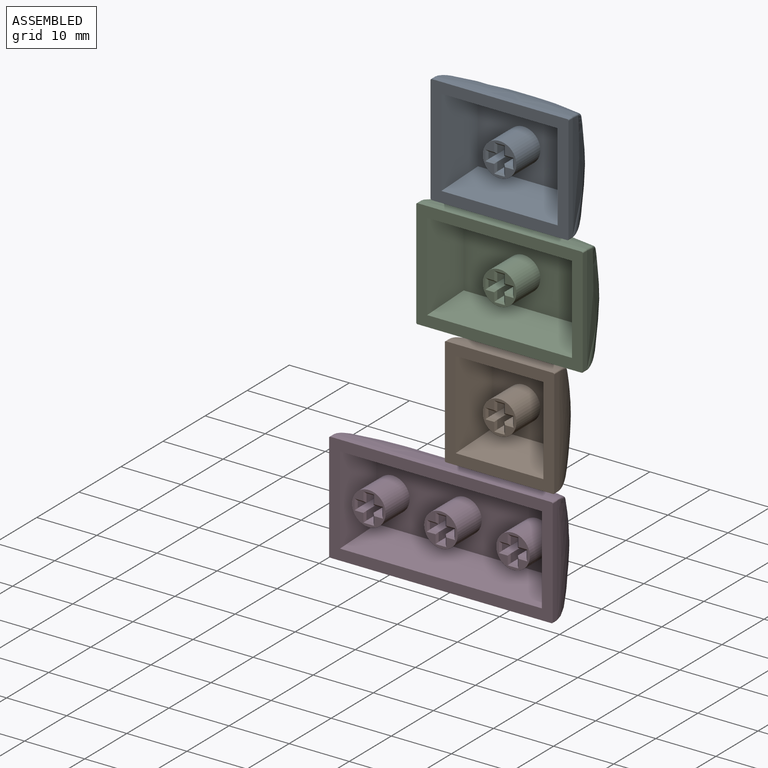
[diagram: assembled view]
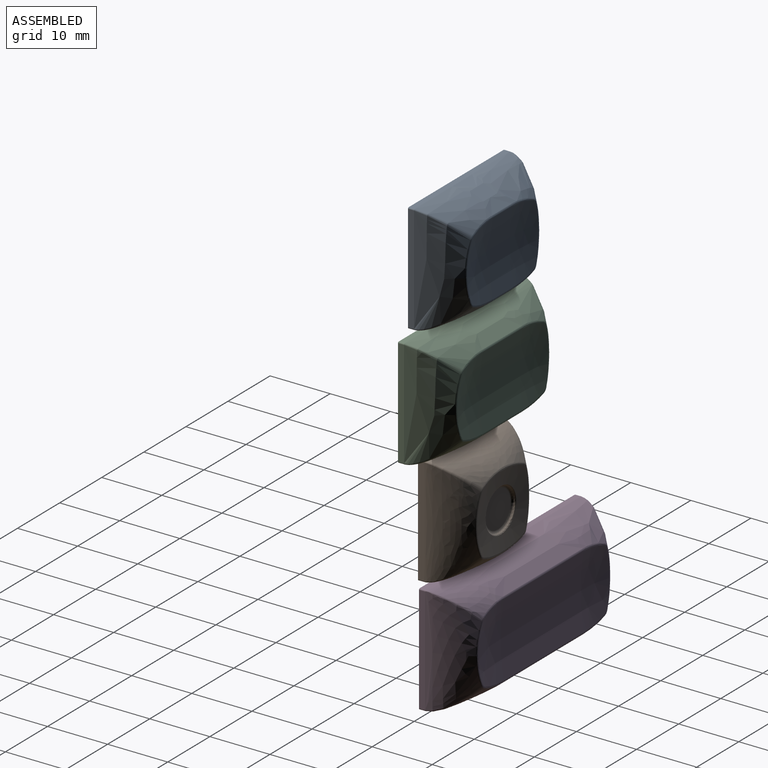
[diagram: assembled view, second angle]
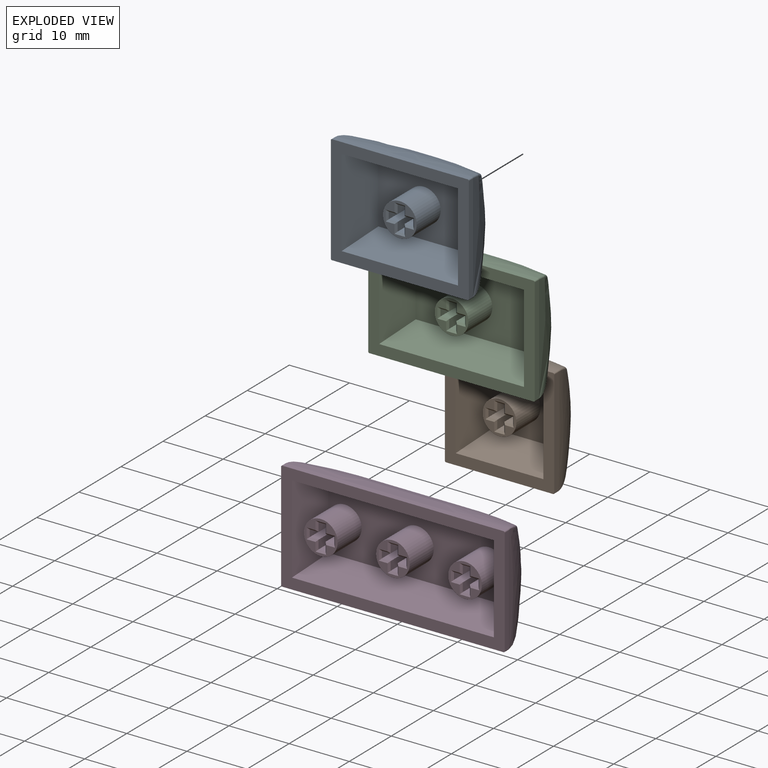
[diagram: exploded view]
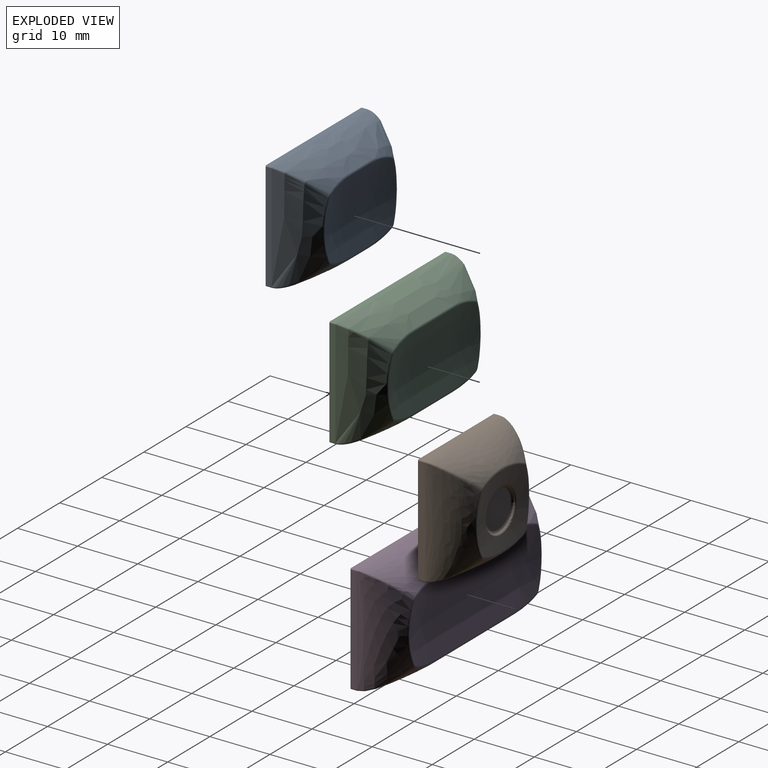
[diagram: exploded view, second angle]
ASSEMBLY  parts=4 mates=3
PART A: 54 faces, bbox 23x8.2x18.2 mm
  f0: plane 1.77x0.3mm, normal (0,-0.71,0.71), area 0.6mm2, adj f8,f11,f15,f18
  f1: plane 1.77x0.3mm, normal (0,-0.71,-0.71), area 0.6mm2, adj f2,f8,f17,f18
  f2: plane 1.77x0.3mm, normal (-0.71,-0.71,0), area 0.6mm2, adj f1,f3,f18,f23
  f3: plane 1.77x0.3mm, normal (0,-0.71,-0.71), area 0.6mm2, adj f2,f4,f18,f22
  f4: plane 1.77x0.3mm, normal (0.71,-0.71,0), area 0.6mm2, adj f3,f5,f18,f21
  f5: plane 1.77x0.3mm, normal (0,-0.71,-0.71), area 0.6mm2, adj f4,f6,f18,f20
  f6: plane 1.77x0.3mm, normal (0.71,-0.71,0), area 0.6mm2, adj f5,f7,f18,f25
  f7: plane 1.77x0.3mm, normal (0,-0.71,0.71), area 0.6mm2, adj f6,f9,f18,f24
  f8: plane 1.77x0.3mm, normal (-0.71,-0.71,0), area 0.6mm2, adj f0,f1,f16,f18
  f9: plane 1.77x0.3mm, normal (0.71,-0.71,0), area 0.6mm2, adj f7,f10,f12,f18
  f10: plane 1.77x0.3mm, normal (0,-0.71,0.71), area 0.6mm2, adj f9,f11,f13,f18
  f11: plane 1.77x0.3mm, normal (-0.71,-0.71,0), area 0.6mm2, adj f0,f10,f14,f18
  f12: plane 4.4x1.47mm, normal (1,0,0), area 6.4mm2, adj f9,f13,f19,f24
  f13: plane 4.4x1.17mm, normal (0,0,1), area 5.1mm2, adj f10,f12,f14,f19
  f14: plane 4.4x1.47mm, normal (-1,0,0), area 6.4mm2, adj f11,f13,f15,f19
  f15: plane 4.4x1.47mm, normal (0,0,1), area 6.4mm2, adj f0,f14,f16,f19
  f16: plane 4.4x1.17mm, normal (-1,0,0), area 5.1mm2, adj f8,f15,f17,f19
  f17: plane 4.4x1.47mm, normal (0,0,-1), area 6.4mm2, adj f1,f16,f19,f23
  f18: plane 5.6x5.6mm, normal (0,-1,0), area 11.1mm2, adj f0,f1,f2,f3,f4,f5,f6,f7
  f19: plane 4.1x4.1mm, normal (0,-1,0), area 8.2mm2, adj f12,f13,f14,f15,f16,f17,f20,f21
  f20: plane 4.4x1.47mm, normal (0,0,-1), area 6.4mm2, adj f5,f19,f21,f25
  f21: plane 4.4x1.47mm, normal (1,0,0), area 6.4mm2, adj f4,f19,f20,f22
  f22: plane 4.4x1.17mm, normal (0,0,-1), area 5.1mm2, adj f3,f19,f21,f23
  f23: plane 4.4x1.47mm, normal (-1,0,0), area 6.4mm2, adj f2,f17,f19,f22
  f24: plane 4.4x1.47mm, normal (0,0,1), area 6.4mm2, adj f7,f12,f19,f25
  f25: plane 4.4x1.17mm, normal (1,0,0), area 5.1mm2, adj f6,f19,f20,f24
  f26: cylinder r=2.8mm len=5.7mm, axis (0,1,0), area 100.3mm2, adj f18,f48
  f27: sphere r=38.75mm, area 64.7mm2, adj f28,f30,f38
  f28: bspline ~11.54x6.54mm, area 5.8mm2, adj f27,f29,f30,f31,f39
  f29: bspline ~18x9.1mm, area 173.3mm2, adj f28,f31,f33,f34,f40,f41
  f30: bspline ~5.33x1.56mm, area 2mm2, adj f27,f28,f31,f37
  f31: bspline ~9.1x6.85mm, area 60.8mm2, adj f28,f29,f30,f35,f36,f51
  f32: plane 14.6x5.7mm, normal (-0.94,-0.35,0), area 75.9mm2, adj f46,f48,f49,f50
  f33: cylinder r=0.2mm len=1mm, axis (0,1,0), area 0.3mm2, adj f29,f34,f41,f50
  f34: plane 17.8x1mm, normal (1,0,0), area 17.8mm2, adj f29,f33,f35,f50
  f35: cylinder r=0.2mm len=1mm, axis (0,1,0), area 0.3mm2, adj f31,f34,f50,f51
  f36: extruded ~6.6x4.75mm, area 34.4mm2, adj f31,f37,f51,f52
  f37: cylinder r=0.4mm len=4.75mm, axis (1,0,0), area 1.9mm2, adj f30,f36,f38,f53
  f38: cylinder r=38.75mm len=12.2mm, axis (-1,0,0), area 58.2mm2, adj f27,f37,f39,f47
  f39: cylinder r=0.4mm len=4.75mm, axis (1,0,0), area 1.9mm2, adj f28,f38,f40,f53
  f40: extruded ~6.6x4.75mm, area 34.4mm2, adj f29,f39,f41,f52
  f41: plane 22.55x1mm, normal (0,0,1), area 22.6mm2, adj f29,f33,f40,f44,f50,f52
  f42: cylinder r=0.2mm len=1mm, axis (0,1,0), area 0.3mm2, adj f43,f50,f51,f52
  f43: plane 17.8x1mm, normal (-1,0,0), area 17.8mm2, adj f42,f44,f50,f52
  f44: cylinder r=0.2mm len=1mm, axis (0,1,0), area 0.3mm2, adj f41,f43,f50,f52
  f45: plane 14.6x5.7mm, normal (0.94,-0.35,0), area 75.9mm2, adj f46,f48,f49,f50
  f46: plane 19.35x5.7mm, normal (0,-0.35,-0.94), area 104.8mm2, adj f32,f45,f48,f50
  f47: sphere r=38.75mm, area 66mm2, adj f38,f53
  f48: plane 15.15x10.4mm, normal (0,-1,0), area 132.9mm2, adj f26,f32,f45,f46,f49
  f49: plane 19.35x5.7mm, normal (0,-0.35,0.94), area 104.8mm2, adj f32,f45,f48,f50
  f50: plane 22.95x18.2mm, normal (0,-1,0), area 135.1mm2, adj f32,f33,f34,f35,f41,f42,f43,f44
  f51: plane 22.55x1mm, normal (0,0,-1), area 22.6mm2, adj f31,f35,f36,f42,f50,f52
  f52: bspline ~18.2x9.1mm, area 234.4mm2, adj f36,f40,f41,f42,f43,f44,f51,f53
  f53: bspline ~12.93x6.46mm, area 7.8mm2, adj f37,f39,f47,f52
PART B: 47 faces, bbox 18.2x8.2x18.2 mm
  f0: torus R=3.02mm, axis (0,1,0), area 13.7mm2, adj f1,f2
  f1: plane 6.04x6.04mm, normal (0,1,0), area 28.7mm2, adj f0
  f2: torus R=3.7mm, axis (0,-1,0), area 5.5mm2, adj f0,f3
  f3: sphere r=38.75mm, area 88.6mm2, adj f2,f31
  f4: plane 1.77x0.3mm, normal (0,-0.71,0.71), area 0.6mm2, adj f12,f15,f19,f22
  f5: plane 1.77x0.3mm, normal (0,-0.71,-0.71), area 0.6mm2, adj f6,f12,f21,f22
  f6: plane 1.77x0.3mm, normal (-0.71,-0.71,0), area 0.6mm2, adj f5,f7,f22,f27
  f7: plane 1.77x0.3mm, normal (0,-0.71,-0.71), area 0.6mm2, adj f6,f8,f22,f26
  f8: plane 1.77x0.3mm, normal (0.71,-0.71,0), area 0.6mm2, adj f7,f9,f22,f25
  f9: plane 1.77x0.3mm, normal (0,-0.71,-0.71), area 0.6mm2, adj f8,f10,f22,f24
  f10: plane 1.77x0.3mm, normal (0.71,-0.71,0), area 0.6mm2, adj f9,f11,f22,f29
  f11: plane 1.77x0.3mm, normal (0,-0.71,0.71), area 0.6mm2, adj f10,f13,f22,f28
  f12: plane 1.77x0.3mm, normal (-0.71,-0.71,0), area 0.6mm2, adj f4,f5,f20,f22
  f13: plane 1.77x0.3mm, normal (0.71,-0.71,0), area 0.6mm2, adj f11,f14,f16,f22
  f14: plane 1.77x0.3mm, normal (0,-0.71,0.71), area 0.6mm2, adj f13,f15,f17,f22
  f15: plane 1.77x0.3mm, normal (-0.71,-0.71,0), area 0.6mm2, adj f4,f14,f18,f22
  f16: plane 4.4x1.47mm, normal (1,0,0), area 6.4mm2, adj f13,f17,f23,f28
  f17: plane 4.4x1.17mm, normal (0,0,1), area 5.1mm2, adj f14,f16,f18,f23
  f18: plane 4.4x1.47mm, normal (-1,0,0), area 6.4mm2, adj f15,f17,f19,f23
  f19: plane 4.4x1.47mm, normal (0,0,1), area 6.4mm2, adj f4,f18,f20,f23
  f20: plane 4.4x1.17mm, normal (-1,0,0), area 5.1mm2, adj f12,f19,f21,f23
  f21: plane 4.4x1.47mm, normal (0,0,-1), area 6.4mm2, adj f5,f20,f23,f27
  f22: plane 5.6x5.6mm, normal (0,-1,0), area 11.1mm2, adj f4,f5,f6,f7,f8,f9,f10,f11
  f23: plane 4.1x4.1mm, normal (0,-1,0), area 8.2mm2, adj f16,f17,f18,f19,f20,f21,f24,f25
  f24: plane 4.4x1.47mm, normal (0,0,-1), area 6.4mm2, adj f9,f23,f25,f29
  f25: plane 4.4x1.47mm, normal (1,0,0), area 6.4mm2, adj f8,f23,f24,f26
  f26: plane 4.4x1.17mm, normal (0,0,-1), area 5.1mm2, adj f7,f23,f25,f27
  f27: plane 4.4x1.47mm, normal (-1,0,0), area 6.4mm2, adj f6,f21,f23,f26
  f28: plane 4.4x1.47mm, normal (0,0,1), area 6.4mm2, adj f11,f16,f23,f29
  f29: plane 4.4x1.17mm, normal (1,0,0), area 5.1mm2, adj f10,f23,f24,f28
  f30: cylinder r=2.8mm len=5.7mm, axis (0,1,0), area 100.3mm2, adj f22,f33
  f31: bspline ~12.93x12.92mm, area 15.7mm2, adj f3,f32
  f32: bspline ~18.2x18.2mm, area 467.5mm2, adj f31,f38,f39,f41,f42,f43,f44,f45
  f33: plane 10.4x10.4mm, normal (0,-1,0), area 83.5mm2, adj f30,f34,f35,f36,f37
  f34: plane 14.6x5.7mm, normal (0,-0.35,-0.94), area 75.9mm2, adj f33,f35,f37,f40
  f35: plane 14.6x5.7mm, normal (-0.94,-0.35,0), area 75.9mm2, adj f33,f34,f36,f40
  f36: plane 14.6x5.7mm, normal (0,-0.35,0.94), area 75.9mm2, adj f33,f35,f37,f40
  f37: plane 14.6x5.7mm, normal (0.94,-0.35,0), area 75.9mm2, adj f33,f34,f36,f40
  f38: cylinder r=0.2mm len=1mm, axis (0,1,0), area 0.3mm2, adj f32,f39,f40,f45
  f39: plane 17.8x1mm, normal (1,0,0), area 17.8mm2, adj f32,f38,f40,f44
  f40: plane 18.2x18.2mm, normal (0,-1,0), area 118mm2, adj f34,f35,f36,f37,f38,f39,f41,f42
  f41: cylinder r=0.2mm len=1mm, axis (0,1,0), area 0.3mm2, adj f32,f40,f42,f45
  f42: plane 17.8x1mm, normal (-1,0,0), area 17.8mm2, adj f32,f40,f41,f43
  f43: cylinder r=0.2mm len=1mm, axis (0,1,0), area 0.3mm2, adj f32,f40,f42,f46
  f44: cylinder r=0.2mm len=1mm, axis (0,1,0), area 0.3mm2, adj f32,f39,f40,f46
  f45: plane 17.8x1mm, normal (0,0,1), area 17.8mm2, adj f32,f38,f40,f41
  f46: plane 17.8x1mm, normal (0,0,-1), area 17.8mm2, adj f32,f40,f43,f44
PART C: 54 faces, bbox 27.7x8.2x18.2 mm
  f0: plane 1.77x0.3mm, normal (0,-0.71,0.71), area 0.6mm2, adj f8,f11,f15,f18
  f1: plane 1.77x0.3mm, normal (0,-0.71,-0.71), area 0.6mm2, adj f2,f8,f17,f18
  f2: plane 1.77x0.3mm, normal (-0.71,-0.71,0), area 0.6mm2, adj f1,f3,f18,f23
  f3: plane 1.77x0.3mm, normal (0,-0.71,-0.71), area 0.6mm2, adj f2,f4,f18,f22
  f4: plane 1.77x0.3mm, normal (0.71,-0.71,0), area 0.6mm2, adj f3,f5,f18,f21
  f5: plane 1.77x0.3mm, normal (0,-0.71,-0.71), area 0.6mm2, adj f4,f6,f18,f20
  f6: plane 1.77x0.3mm, normal (0.71,-0.71,0), area 0.6mm2, adj f5,f7,f18,f25
  f7: plane 1.77x0.3mm, normal (0,-0.71,0.71), area 0.6mm2, adj f6,f9,f18,f24
  f8: plane 1.77x0.3mm, normal (-0.71,-0.71,0), area 0.6mm2, adj f0,f1,f16,f18
  f9: plane 1.77x0.3mm, normal (0.71,-0.71,0), area 0.6mm2, adj f7,f10,f12,f18
  f10: plane 1.77x0.3mm, normal (0,-0.71,0.71), area 0.6mm2, adj f9,f11,f13,f18
  f11: plane 1.77x0.3mm, normal (-0.71,-0.71,0), area 0.6mm2, adj f0,f10,f14,f18
  f12: plane 4.4x1.47mm, normal (1,0,0), area 6.4mm2, adj f9,f13,f19,f24
  f13: plane 4.4x1.17mm, normal (0,0,1), area 5.1mm2, adj f10,f12,f14,f19
  f14: plane 4.4x1.47mm, normal (-1,0,0), area 6.4mm2, adj f11,f13,f15,f19
  f15: plane 4.4x1.47mm, normal (0,0,1), area 6.4mm2, adj f0,f14,f16,f19
  f16: plane 4.4x1.17mm, normal (-1,0,0), area 5.1mm2, adj f8,f15,f17,f19
  f17: plane 4.4x1.47mm, normal (0,0,-1), area 6.4mm2, adj f1,f16,f19,f23
  f18: plane 5.6x5.6mm, normal (0,-1,0), area 11.1mm2, adj f0,f1,f2,f3,f4,f5,f6,f7
  f19: plane 4.1x4.1mm, normal (0,-1,0), area 8.2mm2, adj f12,f13,f14,f15,f16,f17,f20,f21
  f20: plane 4.4x1.47mm, normal (0,0,-1), area 6.4mm2, adj f5,f19,f21,f25
  f21: plane 4.4x1.47mm, normal (1,0,0), area 6.4mm2, adj f4,f19,f20,f22
  f22: plane 4.4x1.17mm, normal (0,0,-1), area 5.1mm2, adj f3,f19,f21,f23
  f23: plane 4.4x1.47mm, normal (-1,0,0), area 6.4mm2, adj f2,f17,f19,f22
  f24: plane 4.4x1.47mm, normal (0,0,1), area 6.4mm2, adj f7,f12,f19,f25
  f25: plane 4.4x1.17mm, normal (1,0,0), area 5.1mm2, adj f6,f19,f20,f24
  f26: cylinder r=2.8mm len=5.7mm, axis (0,1,0), area 100.3mm2, adj f18,f48
  f27: sphere r=38.75mm, area 64.7mm2, adj f28,f30,f38
  f28: bspline ~11.54x6.47mm, area 5.8mm2, adj f27,f29,f30,f31,f37
  f29: bspline ~18x9.1mm, area 173.3mm2, adj f28,f31,f33,f34,f36,f41
  f30: bspline ~5.33x1.56mm, area 2mm2, adj f27,f28,f31,f39
  f31: bspline ~9.1x6.85mm, area 60.8mm2, adj f28,f29,f30,f35,f40,f51
  f32: plane 14.6x5.7mm, normal (-0.94,-0.35,0), area 75.9mm2, adj f46,f48,f49,f50
  f33: cylinder r=0.2mm len=1mm, axis (0,1,0), area 0.3mm2, adj f29,f34,f41,f50
  f34: plane 17.8x1mm, normal (1,0,0), area 17.8mm2, adj f29,f33,f35,f50
  f35: cylinder r=0.2mm len=1mm, axis (0,1,0), area 0.3mm2, adj f31,f34,f50,f51
  f36: extruded ~9.5x6.6mm, area 68.7mm2, adj f29,f37,f41,f52
  f37: cylinder r=0.4mm len=9.5mm, axis (-1,0,0), area 3.9mm2, adj f28,f36,f38,f53
  f38: cylinder r=38.75mm len=12.2mm, axis (1,0,0), area 116.4mm2, adj f27,f37,f39,f47
  f39: cylinder r=0.4mm len=9.5mm, axis (-1,0,0), area 3.9mm2, adj f30,f38,f40,f53
  f40: extruded ~9.5x6.6mm, area 68.7mm2, adj f31,f39,f51,f52
  f41: plane 27.3x1mm, normal (0,0,1), area 27.3mm2, adj f29,f33,f36,f44,f50,f52
  f42: cylinder r=0.2mm len=1mm, axis (0,1,0), area 0.3mm2, adj f43,f50,f51,f52
  f43: plane 17.8x1mm, normal (-1,0,0), area 17.8mm2, adj f42,f44,f50,f52
  f44: cylinder r=0.2mm len=1mm, axis (0,1,0), area 0.3mm2, adj f41,f43,f50,f52
  f45: plane 14.6x5.7mm, normal (0.94,-0.35,0), area 75.9mm2, adj f46,f48,f49,f50
  f46: plane 24.1x5.7mm, normal (0,-0.35,-0.94), area 133.6mm2, adj f32,f45,f48,f50
  f47: sphere r=38.75mm, area 66mm2, adj f38,f53
  f48: plane 19.9x10.4mm, normal (0,-1,0), area 182.3mm2, adj f26,f32,f45,f46,f49
  f49: plane 24.1x5.7mm, normal (0,-0.35,0.94), area 133.6mm2, adj f32,f45,f48,f50
  f50: plane 27.7x18.2mm, normal (0,-1,0), area 152.2mm2, adj f32,f33,f34,f35,f41,f42,f43,f44
  f51: plane 27.3x1mm, normal (0,0,-1), area 27.3mm2, adj f31,f35,f40,f42,f50,f52
  f52: bspline ~18.2x9.1mm, area 234.4mm2, adj f36,f40,f41,f42,f43,f44,f51,f53
  f53: bspline ~12.93x6.46mm, area 7.8mm2, adj f37,f39,f47,f52
PART D: 108 faces, bbox 39.5x10.5x20.5 mm
  f0: cylinder r=2.8mm len=5.7mm, axis (0,1,0), area 100.3mm2, adj f19,f27,f86
  f1: plane 1.77x0.3mm, normal (0,-0.71,0.71), area 0.6mm2, adj f9,f12,f16,f19
  f2: plane 1.77x0.3mm, normal (0,-0.71,-0.71), area 0.6mm2, adj f3,f9,f18,f19
  f3: plane 1.77x0.3mm, normal (-0.71,-0.71,0), area 0.6mm2, adj f2,f4,f19,f24
  f4: plane 1.77x0.3mm, normal (0,-0.71,-0.71), area 0.6mm2, adj f3,f5,f19,f23
  f5: plane 1.77x0.3mm, normal (0.71,-0.71,0), area 0.6mm2, adj f4,f6,f19,f22
  f6: plane 1.77x0.3mm, normal (0,-0.71,-0.71), area 0.6mm2, adj f5,f7,f19,f21
  f7: plane 1.77x0.3mm, normal (0.71,-0.71,0), area 0.6mm2, adj f6,f8,f19,f26
  f8: plane 1.77x0.3mm, normal (0,-0.71,0.71), area 0.6mm2, adj f7,f10,f19,f25
  f9: plane 1.77x0.3mm, normal (-0.71,-0.71,0), area 0.6mm2, adj f1,f2,f17,f19
  f10: plane 1.77x0.3mm, normal (0.71,-0.71,0), area 0.6mm2, adj f8,f11,f13,f19
  f11: plane 1.77x0.3mm, normal (0,-0.71,0.71), area 0.6mm2, adj f10,f12,f14,f19
  f12: plane 1.77x0.3mm, normal (-0.71,-0.71,0), area 0.6mm2, adj f1,f11,f15,f19
  f13: plane 4.4x1.47mm, normal (1,0,0), area 6.4mm2, adj f10,f14,f20,f25
  f14: plane 4.4x1.17mm, normal (0,0,1), area 5.1mm2, adj f11,f13,f15,f20
  f15: plane 4.4x1.47mm, normal (-1,0,0), area 6.4mm2, adj f12,f14,f16,f20
  f16: plane 4.4x1.47mm, normal (0,0,1), area 6.4mm2, adj f1,f15,f17,f20
  f17: plane 4.4x1.17mm, normal (-1,0,0), area 5.1mm2, adj f9,f16,f18,f20
  f18: plane 4.4x1.47mm, normal (0,0,-1), area 6.4mm2, adj f2,f17,f20,f24
  f19: plane 5.6x5.6mm, normal (0,-1,0), area 11.1mm2, adj f0,f1,f2,f3,f4,f5,f6,f7
  f20: plane 4.1x4.1mm, normal (0,-1,0), area 8.2mm2, adj f13,f14,f15,f16,f17,f18,f21,f22
  f21: plane 4.4x1.47mm, normal (0,0,-1), area 6.4mm2, adj f6,f20,f22,f26
  f22: plane 4.4x1.47mm, normal (1,0,0), area 6.4mm2, adj f5,f20,f21,f23
  f23: plane 4.4x1.17mm, normal (0,0,-1), area 5.1mm2, adj f4,f20,f22,f24
  f24: plane 4.4x1.47mm, normal (-1,0,0), area 6.4mm2, adj f3,f18,f20,f23
  f25: plane 4.4x1.47mm, normal (0,0,1), area 6.4mm2, adj f8,f13,f20,f26
  f26: plane 4.4x1.17mm, normal (1,0,0), area 5.1mm2, adj f7,f20,f21,f25
  f27: plane 29.4x10.4mm, normal (0,-1,0), area 232.1mm2, adj f0,f54,f55,f82,f86,f99,f102
  f28: plane 1.77x0.3mm, normal (0,-0.71,0.71), area 0.6mm2, adj f36,f39,f43,f46
  f29: plane 1.77x0.3mm, normal (0,-0.71,-0.71), area 0.6mm2, adj f30,f36,f45,f46
  f30: plane 1.77x0.3mm, normal (-0.71,-0.71,0), area 0.6mm2, adj f29,f31,f46,f51
  f31: plane 1.77x0.3mm, normal (0,-0.71,-0.71), area 0.6mm2, adj f30,f32,f46,f50
  f32: plane 1.77x0.3mm, normal (0.71,-0.71,0), area 0.6mm2, adj f31,f33,f46,f49
  f33: plane 1.77x0.3mm, normal (0,-0.71,-0.71), area 0.6mm2, adj f32,f34,f46,f48
  f34: plane 1.77x0.3mm, normal (0.71,-0.71,0), area 0.6mm2, adj f33,f35,f46,f53
  f35: plane 1.77x0.3mm, normal (0,-0.71,0.71), area 0.6mm2, adj f34,f37,f46,f52
  f36: plane 1.77x0.3mm, normal (-0.71,-0.71,0), area 0.6mm2, adj f28,f29,f44,f46
  f37: plane 1.77x0.3mm, normal (0.71,-0.71,0), area 0.6mm2, adj f35,f38,f40,f46
  f38: plane 1.77x0.3mm, normal (0,-0.71,0.71), area 0.6mm2, adj f37,f39,f41,f46
  f39: plane 1.77x0.3mm, normal (-0.71,-0.71,0), area 0.6mm2, adj f28,f38,f42,f46
  f40: plane 4.4x1.47mm, normal (1,0,0), area 6.4mm2, adj f37,f41,f47,f52
  f41: plane 4.4x1.17mm, normal (0,0,1), area 5.1mm2, adj f38,f40,f42,f47
  f42: plane 4.4x1.47mm, normal (-1,0,0), area 6.4mm2, adj f39,f41,f43,f47
  f43: plane 4.4x1.47mm, normal (0,0,1), area 6.4mm2, adj f28,f42,f44,f47
  f44: plane 4.4x1.17mm, normal (-1,0,0), area 5.1mm2, adj f36,f43,f45,f47
  f45: plane 4.4x1.47mm, normal (0,0,-1), area 6.4mm2, adj f29,f44,f47,f51
  f46: plane 5.6x5.6mm, normal (0,-1,0), area 11.1mm2, adj f28,f29,f30,f31,f32,f33,f34,f35
  f47: plane 4.1x4.1mm, normal (0,-1,0), area 8.2mm2, adj f40,f41,f42,f43,f44,f45,f48,f49
  f48: plane 4.4x1.47mm, normal (0,0,-1), area 6.4mm2, adj f33,f47,f49,f53
  f49: plane 4.4x1.47mm, normal (1,0,0), area 6.4mm2, adj f32,f47,f48,f50
  f50: plane 4.4x1.17mm, normal (0,0,-1), area 5.1mm2, adj f31,f47,f49,f51
  f51: plane 4.4x1.47mm, normal (-1,0,0), area 6.4mm2, adj f30,f45,f47,f50
  f52: plane 4.4x1.47mm, normal (0,0,1), area 6.4mm2, adj f35,f40,f47,f53
  f53: plane 4.4x1.17mm, normal (1,0,0), area 5.1mm2, adj f34,f47,f48,f52
  f54: cylinder r=2.8mm len=5.7mm, axis (0,1,0), area 100.1mm2, adj f27,f46,f55
  f55: plane 14.74x5.84mm, normal (-0.94,-0.35,0), area 75.6mm2, adj f27,f54,f99,f102,f105
  f56: plane 1.77x0.3mm, normal (0,-0.71,0.71), area 0.6mm2, adj f64,f67,f71,f74
  f57: plane 1.77x0.3mm, normal (0,-0.71,-0.71), area 0.6mm2, adj f58,f64,f73,f74
  f58: plane 1.77x0.3mm, normal (-0.71,-0.71,0), area 0.6mm2, adj f57,f59,f74,f79
  f59: plane 1.77x0.3mm, normal (0,-0.71,-0.71), area 0.6mm2, adj f58,f60,f74,f78
  f60: plane 1.77x0.3mm, normal (0.71,-0.71,0), area 0.6mm2, adj f59,f61,f74,f77
  f61: plane 1.77x0.3mm, normal (0,-0.71,-0.71), area 0.6mm2, adj f60,f62,f74,f76
  f62: plane 1.77x0.3mm, normal (0.71,-0.71,0), area 0.6mm2, adj f61,f63,f74,f81
  f63: plane 1.77x0.3mm, normal (0,-0.71,0.71), area 0.6mm2, adj f62,f65,f74,f80
  f64: plane 1.77x0.3mm, normal (-0.71,-0.71,0), area 0.6mm2, adj f56,f57,f72,f74
  f65: plane 1.77x0.3mm, normal (0.71,-0.71,0), area 0.6mm2, adj f63,f66,f68,f74
  f66: plane 1.77x0.3mm, normal (0,-0.71,0.71), area 0.6mm2, adj f65,f67,f69,f74
  f67: plane 1.77x0.3mm, normal (-0.71,-0.71,0), area 0.6mm2, adj f56,f66,f70,f74
  f68: plane 4.4x1.47mm, normal (1,0,0), area 6.4mm2, adj f65,f69,f75,f80
  f69: plane 4.4x1.17mm, normal (0,0,1), area 5.1mm2, adj f66,f68,f70,f75
  f70: plane 4.4x1.47mm, normal (-1,0,0), area 6.4mm2, adj f67,f69,f71,f75
  f71: plane 4.4x1.47mm, normal (0,0,1), area 6.4mm2, adj f56,f70,f72,f75
  f72: plane 4.4x1.17mm, normal (-1,0,0), area 5.1mm2, adj f64,f71,f73,f75
  f73: plane 4.4x1.47mm, normal (0,0,-1), area 6.4mm2, adj f57,f72,f75,f79
  f74: plane 5.6x5.6mm, normal (0,-1,0), area 11.1mm2, adj f56,f57,f58,f59,f60,f61,f62,f63
  f75: plane 4.1x4.1mm, normal (0,-1,0), area 8.2mm2, adj f68,f69,f70,f71,f72,f73,f76,f77
  f76: plane 4.4x1.47mm, normal (0,0,-1), area 6.4mm2, adj f61,f75,f77,f81
  f77: plane 4.4x1.47mm, normal (1,0,0), area 6.4mm2, adj f60,f75,f76,f78
  f78: plane 4.4x1.17mm, normal (0,0,-1), area 5.1mm2, adj f59,f75,f77,f79
  f79: plane 4.4x1.47mm, normal (-1,0,0), area 6.4mm2, adj f58,f73,f75,f78
  f80: plane 4.4x1.47mm, normal (0,0,1), area 6.4mm2, adj f63,f68,f75,f81
  f81: plane 4.4x1.17mm, normal (1,0,0), area 5.1mm2, adj f62,f75,f76,f80
  f82: cylinder r=2.8mm len=5.7mm, axis (0,1,0), area 100.3mm2, adj f27,f74
  f83: cylinder r=0.2mm len=1mm, axis (0,1,0), area 0.3mm2, adj f84,f88,f105,f107
  f84: plane 17.8x1mm, normal (-1,0,0), area 17.8mm2, adj f83,f85,f88,f105
  f85: cylinder r=0.2mm len=1mm, axis (0,1,0), area 0.3mm2, adj f84,f88,f98,f105
  f86: plane 15.14x6.24mm, normal (0.94,-0.35,0), area 75.6mm2, adj f0,f27,f99,f102,f105
  f87: sphere r=38.75mm, area 66mm2, adj f89,f92
  f88: bspline ~18.2x9.1mm, area 234.4mm2, adj f83,f84,f85,f89,f90,f94,f98,f107
  f89: bspline ~12.93x6.46mm, area 7.8mm2, adj f87,f88,f91,f93
  f90: extruded ~19x6.6mm, area 137.5mm2, adj f88,f91,f101,f107
  f91: cylinder r=0.4mm len=19mm, axis (1,0,0), area 7.7mm2, adj f89,f90,f92,f100
  f92: cylinder r=38.75mm len=19mm, axis (-1,0,0), area 232.7mm2, adj f87,f91,f93,f95
  f93: cylinder r=0.4mm len=19mm, axis (1,0,0), area 7.7mm2, adj f89,f92,f94,f96
  f94: extruded ~19x6.6mm, area 137.5mm2, adj f88,f93,f97,f98
  f95: sphere r=38.75mm, area 65.1mm2, adj f92,f96,f100
  f96: bspline ~5.08x1.37mm, area 1.9mm2, adj f93,f95,f97,f100,f101
  f97: bspline ~8.9x6.82mm, area 56.3mm2, adj f94,f96,f98,f101
  f98: plane 39.08x3.28mm, normal (0,0,1), area 36.8mm2, adj f85,f88,f94,f97,f103,f105
  f99: plane 33.6x5.7mm, normal (0,-0.35,-0.94), area 191.3mm2, adj f27,f55,f86,f105
  f100: bspline ~11.79x6.46mm, area 5.9mm2, adj f91,f95,f96,f101
  f101: bspline ~18.2x9.1mm, area 177.8mm2, adj f90,f96,f97,f100,f103,f104,f106,f107
  f102: plane 33.6x5.7mm, normal (0,-0.35,0.94), area 191.3mm2, adj f27,f55,f86,f105
  f103: cylinder r=0.2mm len=1mm, axis (0,1,0), area 0.3mm2, adj f98,f101,f104,f105
  f104: plane 17.8x1mm, normal (1,0,0), area 17.8mm2, adj f101,f103,f105,f106
  f105: plane 37.2x18.2mm, normal (0,-1,0), area 186.4mm2, adj f55,f83,f84,f85,f86,f98,f99,f102
  f106: cylinder r=0.2mm len=1mm, axis (0,1,0), area 0.3mm2, adj f101,f104,f105,f107
  f107: plane 36.8x1mm, normal (0,0,-1), area 36.8mm2, adj f83,f88,f90,f101,f105,f106
PLACE A t=(0,0,40)mm
PLACE B t=(0,0,1.2)mm
PLACE C t=(0,0,20.7)mm
PLACE D t=(-9.75,0,-18.3)mm
MATE fastened B.f30 <-> D.f105  axis (0,-1,0) through (0,0,1.2)mm
MATE fastened B.f30 <-> C.f50  axis (0,-1,0) through (0,0,1.2)mm
MATE fastened C.f26 <-> A.f50  axis (0,1,0) through (0,0,20.7)mm
